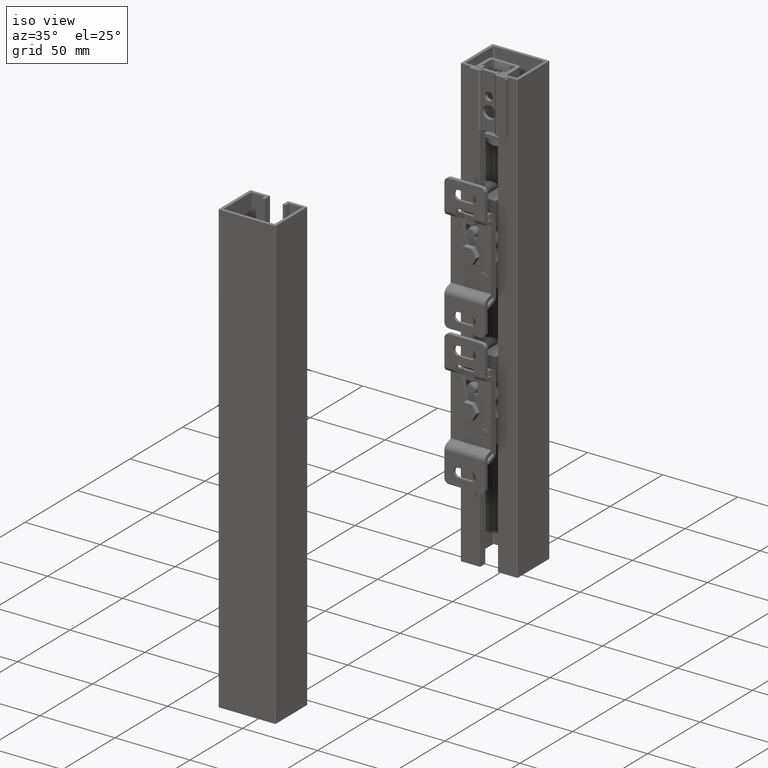
[diagram: clean part render]
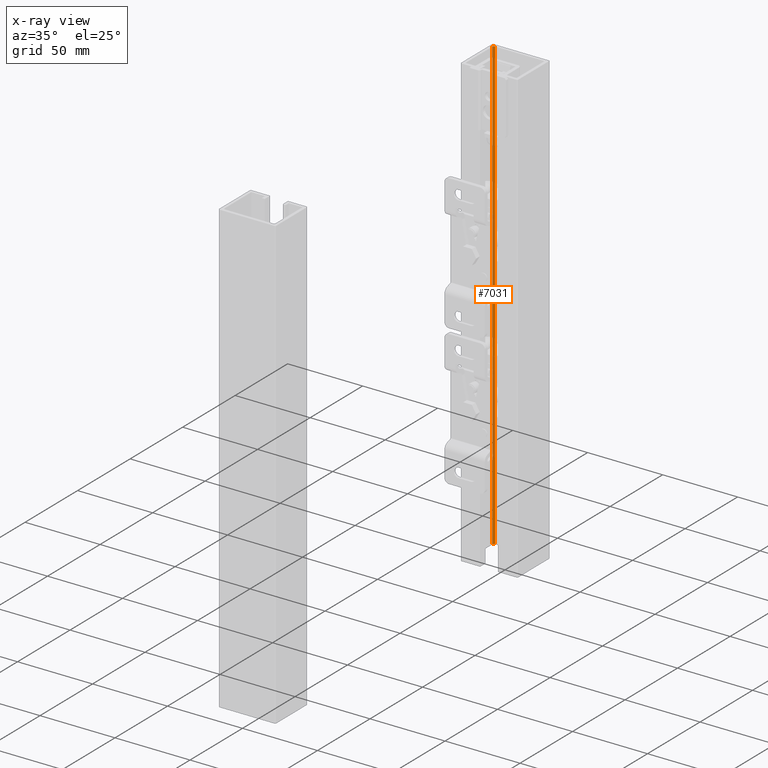
[diagram: x-ray — body ghosted, one internal face saturated and labeled with its STEP entity id]
A machine part, iso view, then the same camera in x-ray: the body is ghosted and one INTERNAL B-rep face — a face not visible from any outside direction — is saturated and labeled: STEP entity #7031.
In plain terms, the highlighted cylindrical surface (edge-blend (fillet) strip) has radius 1 mm, axis along (0, 0, 1).
Its self-contained STEP definition (entity closure, byte-faithful):
#523=FACE_OUTER_BOUND('',#948,.T.);
#948=EDGE_LOOP('',(#4864,#4865,#4866,#4867));
#1509=LINE('',#10483,#2168);
#1510=LINE('',#10486,#2169);
#2168=VECTOR('',#8266,300.);
#2169=VECTOR('',#8269,300.);
#2824=CIRCLE('',#7475,1.);
#2825=CIRCLE('',#7476,1.);
#3146=VERTEX_POINT('',#10479);
#3147=VERTEX_POINT('',#10480);
#3148=VERTEX_POINT('',#10482);
#3149=VERTEX_POINT('',#10484);
#3853=EDGE_CURVE('',#3146,#3147,#2824,.T.);
#3854=EDGE_CURVE('',#3147,#3148,#1509,.T.);
#3855=EDGE_CURVE('',#3148,#3149,#2825,.T.);
#3856=EDGE_CURVE('',#3149,#3146,#1510,.T.);
#4864=ORIENTED_EDGE('',*,*,#3853,.T.);
#4865=ORIENTED_EDGE('',*,*,#3854,.T.);
#4866=ORIENTED_EDGE('',*,*,#3855,.T.);
#4867=ORIENTED_EDGE('',*,*,#3856,.T.);
#6877=CYLINDRICAL_SURFACE('',#7474,1.);
#7031=ADVANCED_FACE('',(#523),#6877,.F.);
#7474=AXIS2_PLACEMENT_3D('',#10478,#8262,#8263);
#7475=AXIS2_PLACEMENT_3D('',#10481,#8264,#8265);
#7476=AXIS2_PLACEMENT_3D('',#10485,#8267,#8268);
#8262=DIRECTION('center_axis',(0.,0.,1.));
#8263=DIRECTION('ref_axis',(-0.707106781186549,0.707106781186546,0.));
#8264=DIRECTION('center_axis',(0.,0.,-1.));
#8265=DIRECTION('ref_axis',(-0.707106781186549,0.707106781186546,0.));
#8266=DIRECTION('',(0.,0.,1.));
#8267=DIRECTION('center_axis',(0.,0.,1.));
#8268=DIRECTION('ref_axis',(-0.707106781186549,0.707106781186546,0.));
#8269=DIRECTION('',(0.,0.,-1.));
#10478=CARTESIAN_POINT('Origin',(-16.,12.25,0.));
#10479=CARTESIAN_POINT('',(-17.,12.25,-150.));
#10480=CARTESIAN_POINT('',(-16.,13.25,-150.));
#10481=CARTESIAN_POINT('Origin',(-16.,12.25,-150.));
#10482=CARTESIAN_POINT('',(-16.,13.25,150.));
#10483=CARTESIAN_POINT('',(-16.,13.25,0.));
#10484=CARTESIAN_POINT('',(-17.,12.25,150.));
#10485=CARTESIAN_POINT('Origin',(-16.,12.25,150.));
#10486=CARTESIAN_POINT('',(-17.,12.25,0.));